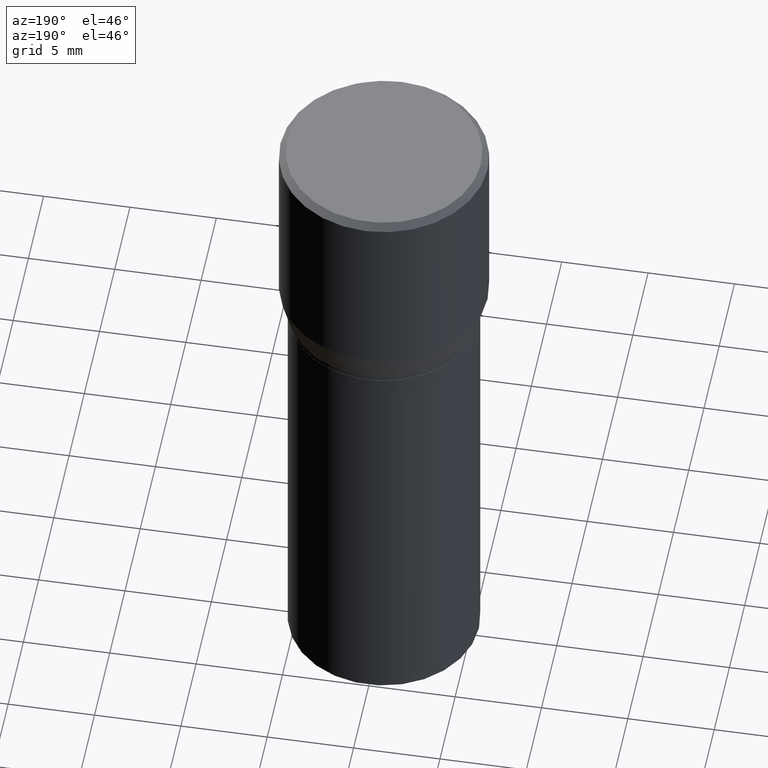
[diagram: clean part render]
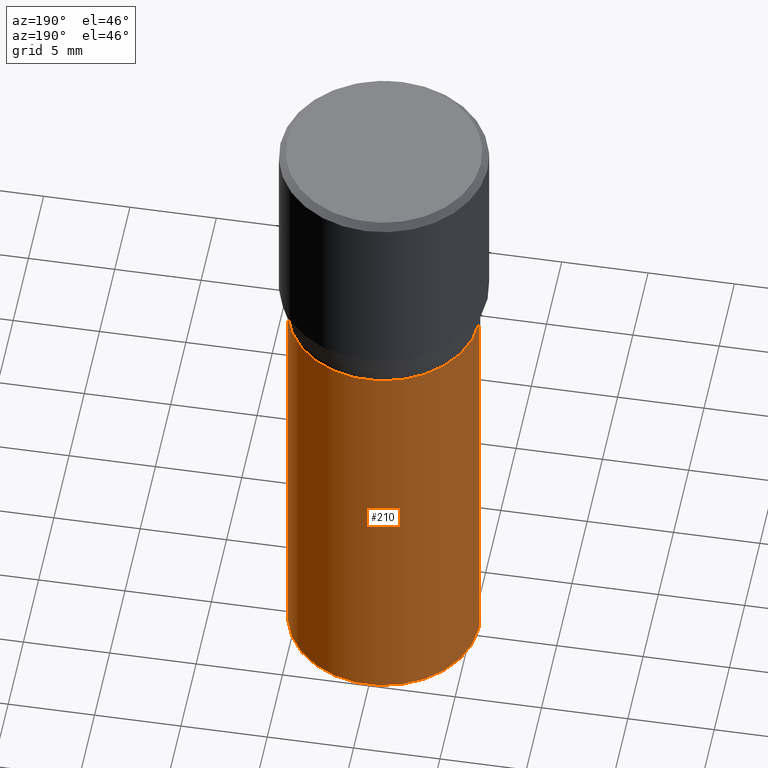
[diagram: same view with one face highlighted and labeled with its STEP entity id]
A machine part, auxiliary view. The second image highlights one B-rep face of the part: STEP entity #210.
In plain terms, the highlighted cylindrical surface (partial cylindrical patch) has radius 5.5004 mm, axis along (-0, 0, 1).
Its self-contained STEP definition (entity closure, byte-faithful):
#13 = VERTEX_POINT ( 'NONE', #310 ) ;
#36 = AXIS2_PLACEMENT_3D ( 'NONE', #122, #81, #354 ) ;
#52 = ORIENTED_EDGE ( 'NONE', *, *, #296, .T. ) ;
#81 = DIRECTION ( 'NONE',  ( -2.445468806185136597E-29, 3.491481338843145583E-15, 1.000000000000000000 ) ) ;
#92 = VERTEX_POINT ( 'NONE', #142 ) ;
#96 = DIRECTION ( 'NONE',  ( 1.000000000000000000, -6.982962677686265133E-15, 0.000000000000000000 ) ) ;
#122 = CARTESIAN_POINT ( 'NONE',  ( 0.000000000000000000, 0.000000000000000000, 0.000000000000000000 ) ) ;
#128 = DIRECTION ( 'NONE',  ( -2.445468806185136877E-29, 3.491481338843145188E-15, 1.000000000000000000 ) ) ;
#138 = DIRECTION ( 'NONE',  ( -2.445468806185136597E-29, 3.491481338843145583E-15, 1.000000000000000000 ) ) ;
#141 = EDGE_CURVE ( 'NONE', #92, #363, #411, .T. ) ;
#142 = CARTESIAN_POINT ( 'NONE',  ( 0.2165500000000000203, -6.749382576117678999E-15, -1.500000000000000222 ) ) ;
#148 = EDGE_CURVE ( 'NONE', #363, #13, #420, .T. ) ;
#150 = CIRCLE ( 'NONE', #461, 0.2165500000000000203 ) ;
#187 = VERTEX_POINT ( 'NONE', #357 ) ;
#199 = DIRECTION ( 'NONE',  ( 1.000000000000000000, -6.982962677686264344E-15, 0.000000000000000000 ) ) ;
#203 = CARTESIAN_POINT ( 'NONE',  ( 0.2165500000000000203, -1.512160567852961217E-15, 1.055936080798610036E-29 ) ) ;
#206 = CARTESIAN_POINT ( 'NONE',  ( 0.2165500000000000203, -3.312717494294371784E-15, -0.5157000000000001583 ) ) ;
#210 = ADVANCED_FACE ( 'NONE', ( #320 ), #396, .T. ) ;
#216 = VECTOR ( 'NONE', #128, 39.37007874015748143 ) ;
#227 = ORIENTED_EDGE ( 'NONE', *, *, #148, .F. ) ;
#229 = VECTOR ( 'NONE', #267, 39.37007874015748143 ) ;
#234 = DIRECTION ( 'NONE',  ( -2.445468806185136597E-29, 3.491481338843145583E-15, 1.000000000000000000 ) ) ;
#252 = EDGE_CURVE ( 'NONE', #92, #187, #150, .T. ) ;
#264 = ORIENTED_EDGE ( 'NONE', *, *, #252, .T. ) ;
#267 = DIRECTION ( 'NONE',  ( -2.445468806185136877E-29, 3.491481338843145188E-15, 1.000000000000000000 ) ) ;
#296 = EDGE_CURVE ( 'NONE', #187, #13, #303, .T. ) ;
#303 = LINE ( 'NONE', #444, #216 ) ;
#310 = CARTESIAN_POINT ( 'NONE',  ( -0.2165500000000000203, -1.980209173064567670E-15, -0.5157000000000001583 ) ) ;
#312 = CARTESIAN_POINT ( 'NONE',  ( 1.261128263349675426E-29, -1.800556926441410962E-15, -0.5157000000000001583 ) ) ;
#320 = FACE_OUTER_BOUND ( 'NONE', #368, .T. ) ;
#354 = DIRECTION ( 'NONE',  ( 1.000000000000000000, -6.982962677686266711E-15, 4.876176775795935793E-29 ) ) ;
#357 = CARTESIAN_POINT ( 'NONE',  ( -0.2165500000000000203, -1.980209173064567670E-15, -1.500000000000000222 ) ) ;
#363 = VERTEX_POINT ( 'NONE', #206 ) ;
#366 = AXIS2_PLACEMENT_3D ( 'NONE', #312, #138, #96 ) ;
#368 = EDGE_LOOP ( 'NONE', ( #264, #52, #227, #390 ) ) ;
#372 = CARTESIAN_POINT ( 'NONE',  ( 3.668203209277704895E-29, -5.237222008264718177E-15, -1.500000000000000222 ) ) ;
#390 = ORIENTED_EDGE ( 'NONE', *, *, #141, .F. ) ;
#396 = CYLINDRICAL_SURFACE ( 'NONE', #36, 0.2165500000000000203 ) ;
#411 = LINE ( 'NONE', #203, #229 ) ;
#420 = CIRCLE ( 'NONE', #366, 0.2165500000000000203 ) ;
#444 = CARTESIAN_POINT ( 'NONE',  ( -0.2165500000000000203, 1.538680294288497096E-15, -1.065195393794699923E-29 ) ) ;
#461 = AXIS2_PLACEMENT_3D ( 'NONE', #372, #234, #199 ) ;